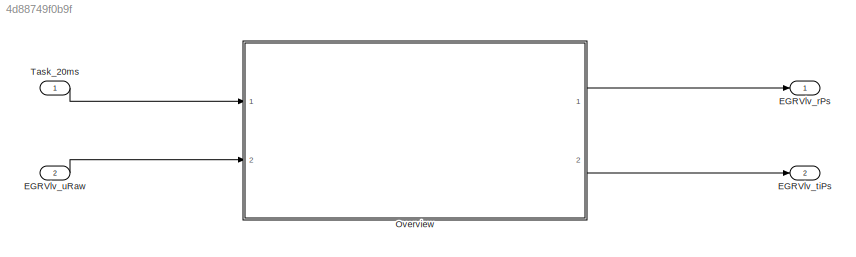
MODEL slx_4d88749f0b9f
KIND model
CONFIG AbsTol = auto
CONFIG EnableMultiTasking = off
CONFIG FixedStep = auto
CONFIG MaxStep = auto
CONFIG MinStep = auto
CONFIG RelTol = 1e-3
CONFIG SampleTimeConstraint = Unconstrained
CONFIG SolverName = VariableStepAuto
CONFIG StartTime = 0.0
CONFIG StopTime = 10.0
BLOCK [Outport] EGRVlv_rPs
BLOCK [Outport] EGRVlv_tiPs
  Port = 2
BLOCK [Inport] EGRVlv_uRaw
  Port = 2
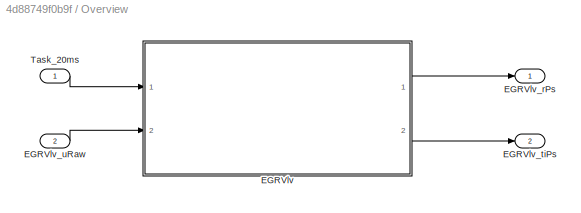
BLOCK [SubSystem] Overview
  Ports = [2, 2]
  RequestExecContextInheritance = off
BLOCK [ModelReference] Overview/EGRVlv
  ModelNameDialog = EGRVlv
  ModelReferenceVersion = 6.0
  Ports = [2, 2]
  ScheduleRates = on
BLOCK [Outport] Overview/EGRVlv_rPs
BLOCK [Outport] Overview/EGRVlv_tiPs
  Port = 2
BLOCK [Inport] Overview/EGRVlv_uRaw
  Port = 2
BLOCK [Inport] Overview/Task_20ms
BLOCK [Inport] Task_20ms
  OutputFunctionCall = on
LINE EGRVlv_uRaw:1 -> Overview:2
LINE Overview/EGRVlv:1 -> Overview/EGRVlv_rPs:1
LINE Overview/EGRVlv:2 -> Overview/EGRVlv_tiPs:1
LINE Overview/EGRVlv_uRaw:1 -> Overview/EGRVlv:2
LINE Overview/Task_20ms:1 -> Overview/EGRVlv:1
LINE Overview:1 -> EGRVlv_rPs:1
LINE Overview:2 -> EGRVlv_tiPs:1
LINE Task_20ms:1 -> Overview:1
